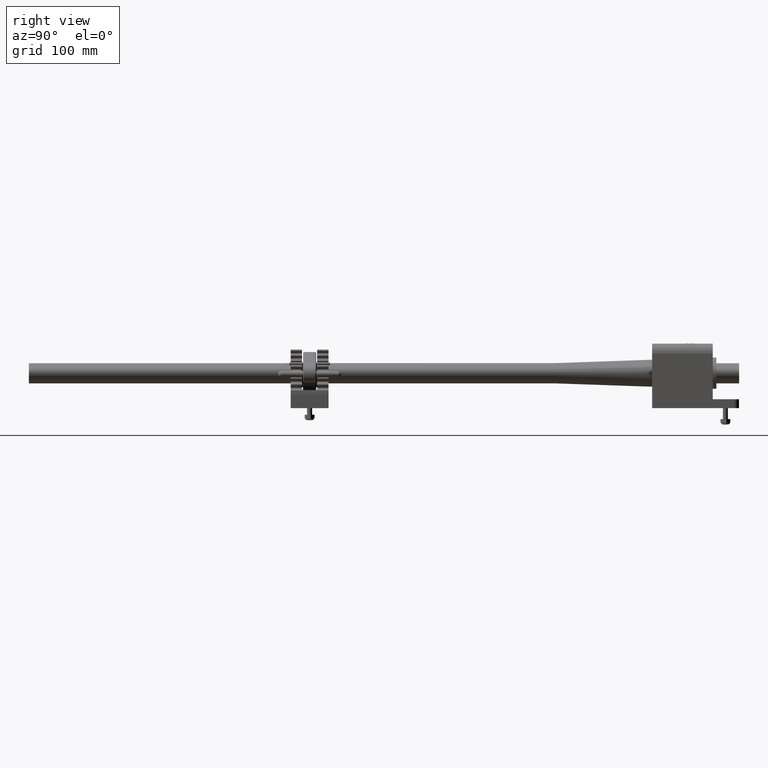
[diagram: clean part render]
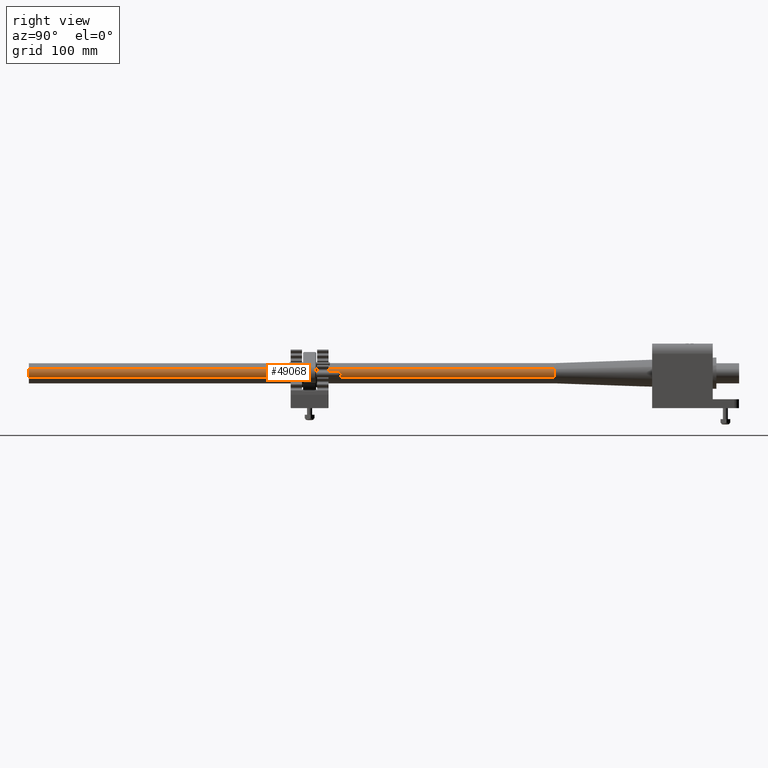
[diagram: same view with one face highlighted and labeled with its STEP entity id]
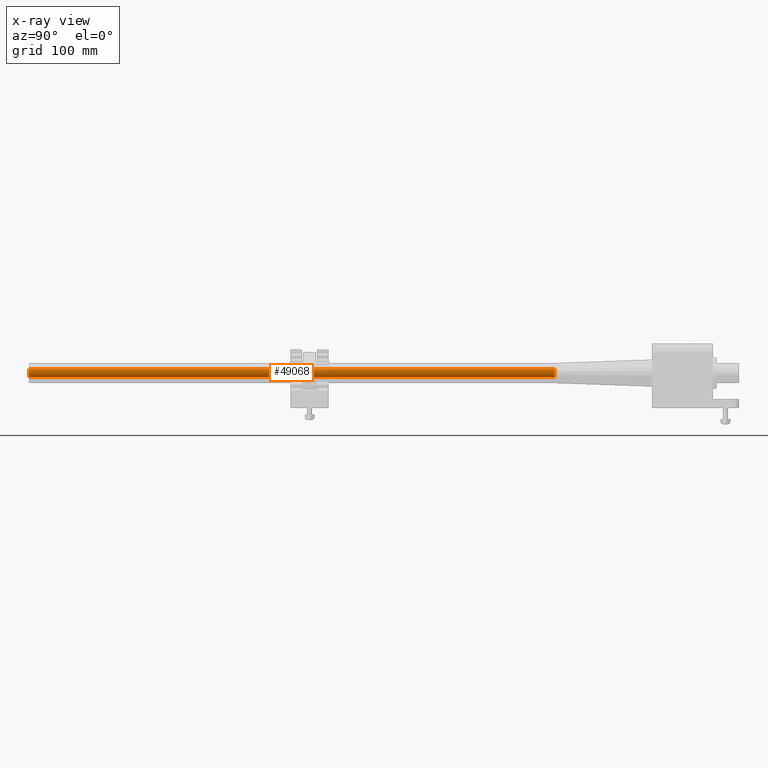
[diagram: x-ray of the same camera — body ghosted, the highlighted face saturated]
A machine part, right view. The second image highlights one B-rep face of the part: STEP entity #49068.
The next image is the same camera in x-ray: the body ghosted, the highlighted face saturated — about 0% of this face is hidden behind the body in this view.
In plain terms, the highlighted cylindrical surface (edge-blend (fillet) strip) has radius 7.9375 mm, axis along (-0, -1, -0).
Its self-contained STEP definition (entity closure, byte-faithful):
#1091 = VERTEX_POINT ( 'NONE', #5729 ) ;
#1117 = VERTEX_POINT ( 'NONE', #5755 ) ;
#1119 = VERTEX_POINT ( 'NONE', #5753 ) ;
#1171 = VERTEX_POINT ( 'NONE', #5696 ) ;
#5696 = CARTESIAN_POINT ( 'NONE',  ( 0.6479452054794521100, 26.00000000000000000, -0.2054794520547947300 ) ) ;
#5729 = CARTESIAN_POINT ( 'NONE',  ( 0.6479452054794521100, 26.00000000000000000, 0.2054794520547944500 ) ) ;
#5753 = CARTESIAN_POINT ( 'NONE',  ( 0.6479452054794521100, 0.0000000000000000000, -0.2054794520547947300 ) ) ;
#5755 = CARTESIAN_POINT ( 'NONE',  ( 0.6479452054794521100, 0.0000000000000000000, 0.2054794520547944500 ) ) ;
#7915 = ORIENTED_EDGE ( 'NONE', *, *, #35086, .T. ) ;
#7917 = ORIENTED_EDGE ( 'NONE', *, *, #35092, .F. ) ;
#7918 = ORIENTED_EDGE ( 'NONE', *, *, #35093, .F. ) ;
#7921 = ORIENTED_EDGE ( 'NONE', *, *, #35087, .T. ) ;
#9073 = CARTESIAN_POINT ( 'NONE',  ( 0.6479452054794521100, 26.00000000000000000, 0.2054794520547944500 ) ) ;
#9076 = CARTESIAN_POINT ( 'NONE',  ( 0.4124999999999999200, 0.0000000000000000000, 0.0000000000000000000 ) ) ;
#9077 = DIRECTION ( 'NONE',  ( 0.0000000000000000000, 1.000000000000000000, -0.0000000000000000000 ) ) ;
#9078 = DIRECTION ( 'NONE',  ( 0.0000000000000000000, 0.0000000000000000000, -1.000000000000000000 ) ) ;
#9080 = DIRECTION ( 'NONE',  ( -0.0000000000000000000, -1.000000000000000000, -0.0000000000000000000 ) ) ;
#9085 = CARTESIAN_POINT ( 'NONE',  ( 0.6479452054794521100, 26.00000000000000000, -0.2054794520547947300 ) ) ;
#9092 = CARTESIAN_POINT ( 'NONE',  ( 0.4124999999999999200, 26.00000000000000000, 0.0000000000000000000 ) ) ;
#9093 = DIRECTION ( 'NONE',  ( -0.0000000000000000000, -1.000000000000000000, -0.0000000000000000000 ) ) ;
#9094 = DIRECTION ( 'NONE',  ( 0.0000000000000000000, 1.000000000000000000, -0.0000000000000000000 ) ) ;
#9095 = DIRECTION ( 'NONE',  ( 0.0000000000000000000, 0.0000000000000000000, -1.000000000000000000 ) ) ;
#12887 = AXIS2_PLACEMENT_3D ( 'NONE', #27471, #27470, #27468 ) ;
#19207 = VECTOR ( 'NONE', #9093, 39.37007874015748100 ) ;
#19212 = VECTOR ( 'NONE', #9080, 39.37007874015748100 ) ;
#19214 = LINE ( 'NONE', #9073, #19212 ) ;
#19215 = CIRCLE ( 'NONE', #38864, 0.3125000000000001700 ) ;
#19221 = LINE ( 'NONE', #9085, #19207 ) ;
#19224 = CIRCLE ( 'NONE', #38891, 0.3125000000000001700 ) ;
#27468 = DIRECTION ( 'NONE',  ( 0.0000000000000000000, 0.0000000000000000000, -1.000000000000000000 ) ) ;
#27470 = DIRECTION ( 'NONE',  ( -0.0000000000000000000, -1.000000000000000000, -0.0000000000000000000 ) ) ;
#27471 = CARTESIAN_POINT ( 'NONE',  ( 0.4124999999999999200, 26.00000000000000000, 0.0000000000000000000 ) ) ;
#35086 = EDGE_CURVE ( 'NONE', #1117, #1119, #19215, .T. ) ;
#35087 = EDGE_CURVE ( 'NONE', #1091, #1117, #19214, .T. ) ;
#35092 = EDGE_CURVE ( 'NONE', #1171, #1119, #19221, .T. ) ;
#35093 = EDGE_CURVE ( 'NONE', #1091, #1171, #19224, .T. ) ;
#38864 = AXIS2_PLACEMENT_3D ( 'NONE', #9076, #9077, #9078 ) ;
#38891 = AXIS2_PLACEMENT_3D ( 'NONE', #9092, #9094, #9095 ) ;
#41069 = FACE_OUTER_BOUND ( 'NONE', #49479, .T. ) ;
#41075 = CYLINDRICAL_SURFACE ( 'NONE', #12887, 0.3125000000000001700 ) ;
#49068 = ADVANCED_FACE ( 'NONE', ( #41069 ), #41075, .T. ) ;
#49479 = EDGE_LOOP ( 'NONE', ( #7915, #7917, #7918, #7921 ) ) ;